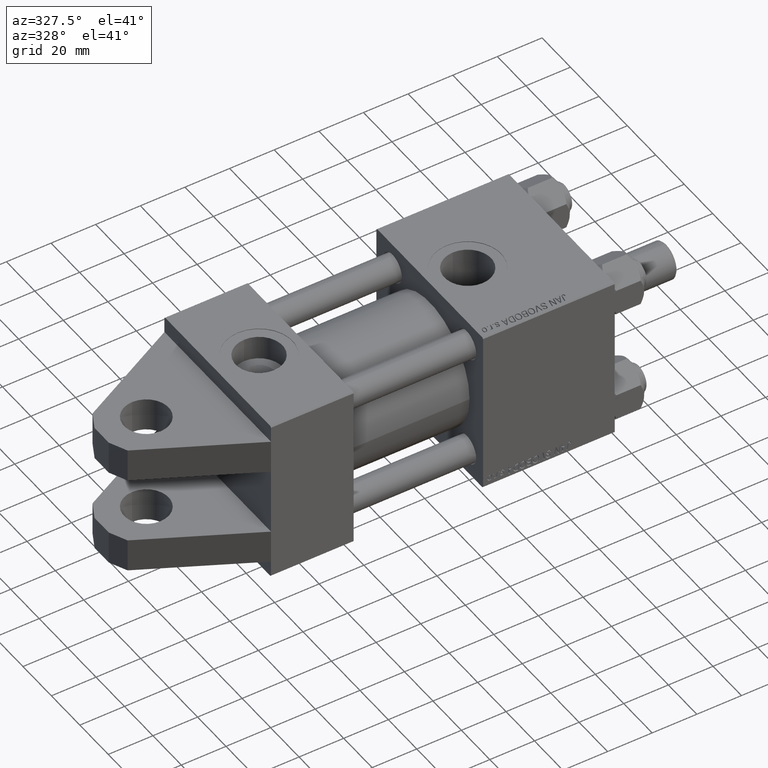
[diagram: clean part render]
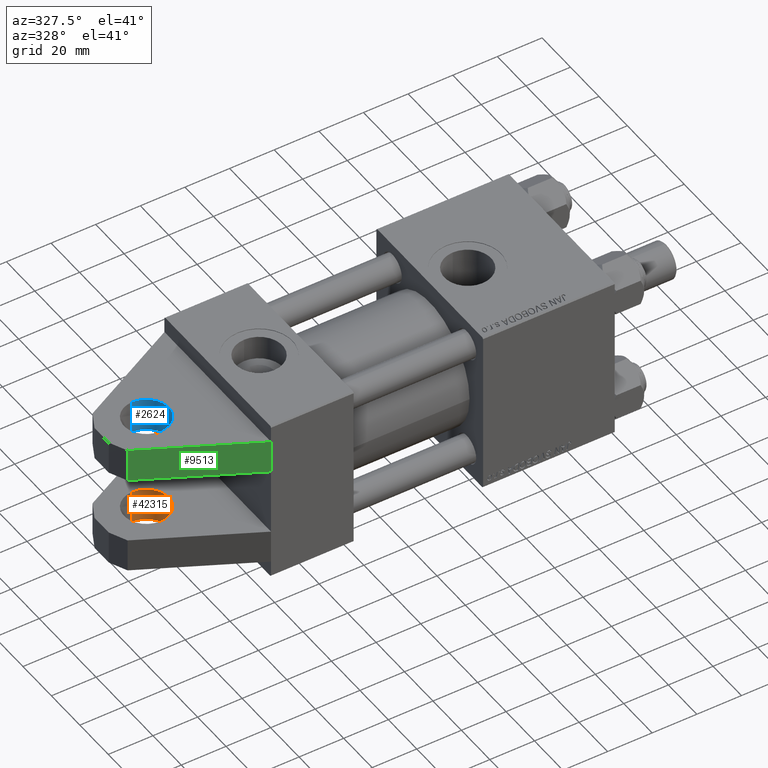
[diagram: same view with three faces highlighted in distinct colors, each labeled with its STEP entity id]
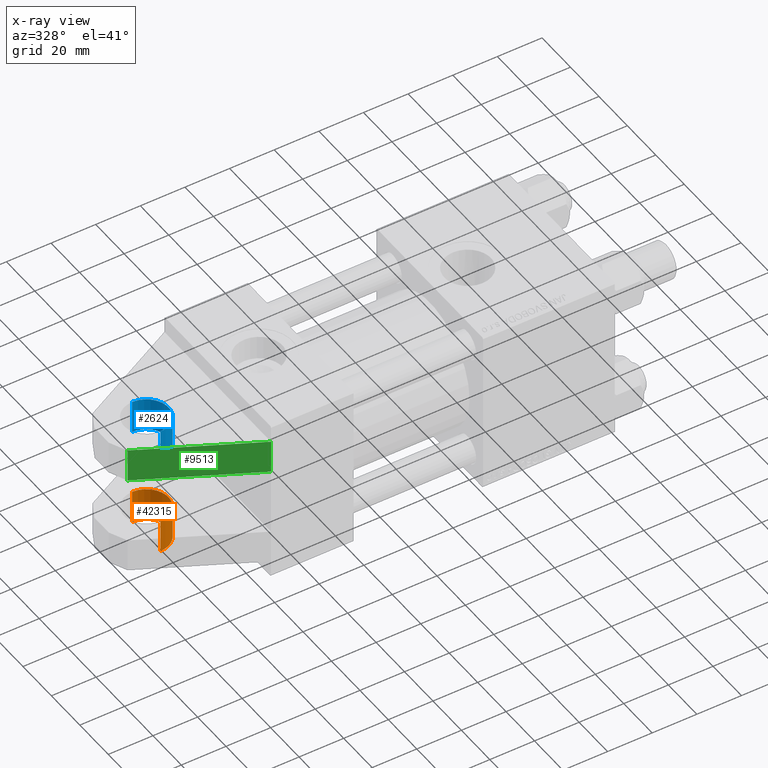
[diagram: x-ray of the same camera — body ghosted, the three highlighted faces saturated]
A machine part, auxiliary view with three faces highlighted in distinct colors.
The next image is the same camera in x-ray (body ghosted, the three faces saturated) — at least one of them is partly hidden behind the body in this view.
Their STEP definitions:

[orange] entity #42315 — the highlighted cylindrical surface (edge-blend (fillet) strip) has radius 10 mm, axis along (-0, -0, 1).
#1060 = VERTEX_POINT ( 'NONE', #42036 ) ;
#3557 = VECTOR ( 'NONE', #32211, 1000.000000000000000 ) ;
#3680 = DIRECTION ( 'NONE',  ( 0.000000000000000000, 0.000000000000000000, 1.000000000000000000 ) ) ;
#4427 = LINE ( 'NONE', #24759, #19759 ) ;
#4739 = EDGE_LOOP ( 'NONE', ( #50429, #13485, #47807, #20985 ) ) ;
#5723 = CYLINDRICAL_SURFACE ( 'NONE', #7133, 10.00000000000000000 ) ;
#7133 = AXIS2_PLACEMENT_3D ( 'NONE', #9174, #9689, #25269 ) ;
#9174 = CARTESIAN_POINT ( 'NONE',  ( -32.00000000000000000, 30.00000000000000000, -6.938893903907228378E-15 ) ) ;
#9423 = FACE_OUTER_BOUND ( 'NONE', #4739, .T. ) ;
#9689 = DIRECTION ( 'NONE',  ( -0.000000000000000000, -1.000000000000000000, -0.000000000000000000 ) ) ;
#9749 = EDGE_CURVE ( 'NONE', #35036, #1060, #45113, .T. ) ;
#12443 = CIRCLE ( 'NONE', #25137, 10.00000000000000000 ) ;
#12491 = DIRECTION ( 'NONE',  ( 0.000000000000000000, 1.000000000000000000, 0.000000000000000000 ) ) ;
#13485 = ORIENTED_EDGE ( 'NONE', *, *, #9749, .T. ) ;
#14578 = EDGE_CURVE ( 'NONE', #17393, #49573, #12443, .T. ) ;
#15566 = CARTESIAN_POINT ( 'NONE',  ( -32.00000000000000000, 30.00000000000000000, 9.999999999999992895 ) ) ;
#15956 = CARTESIAN_POINT ( 'NONE',  ( -32.00000000000000000, 15.00000000000000000, 9.999999999999992895 ) ) ;
#16125 = LINE ( 'NONE', #40379, #3557 ) ;
#17393 = VERTEX_POINT ( 'NONE', #15956 ) ;
#19759 = VECTOR ( 'NONE', #28194, 1000.000000000000000 ) ;
#20648 = CARTESIAN_POINT ( 'NONE',  ( -32.00000000000000000, 15.00000000000000000, -10.00000000000000711 ) ) ;
#20985 = ORIENTED_EDGE ( 'NONE', *, *, #14578, .F. ) ;
#22394 = AXIS2_PLACEMENT_3D ( 'NONE', #51415, #31381, #3680 ) ;
#24759 = CARTESIAN_POINT ( 'NONE',  ( -32.00000000000000000, 30.00000000000000000, -10.00000000000000711 ) ) ;
#25137 = AXIS2_PLACEMENT_3D ( 'NONE', #41737, #12491, #29364 ) ;
#25269 = DIRECTION ( 'NONE',  ( 0.000000000000000000, 0.000000000000000000, -1.000000000000000000 ) ) ;
#28194 = DIRECTION ( 'NONE',  ( -0.000000000000000000, -1.000000000000000000, -0.000000000000000000 ) ) ;
#29364 = DIRECTION ( 'NONE',  ( 0.000000000000000000, 0.000000000000000000, 1.000000000000000000 ) ) ;
#31381 = DIRECTION ( 'NONE',  ( 0.000000000000000000, 1.000000000000000000, 0.000000000000000000 ) ) ;
#32211 = DIRECTION ( 'NONE',  ( -0.000000000000000000, -1.000000000000000000, -0.000000000000000000 ) ) ;
#34823 = EDGE_CURVE ( 'NONE', #35036, #17393, #16125, .T. ) ;
#35036 = VERTEX_POINT ( 'NONE', #15566 ) ;
#40379 = CARTESIAN_POINT ( 'NONE',  ( -32.00000000000000000, 30.00000000000000000, 9.999999999999992895 ) ) ;
#41737 = CARTESIAN_POINT ( 'NONE',  ( -32.00000000000000000, 15.00000000000000000, -6.938893903907228378E-15 ) ) ;
#42036 = CARTESIAN_POINT ( 'NONE',  ( -32.00000000000000000, 30.00000000000000000, -10.00000000000000711 ) ) ;
#42315 = ADVANCED_FACE ( 'NONE', ( #9423 ), #5723, .F. ) ;
#43092 = EDGE_CURVE ( 'NONE', #1060, #49573, #4427, .T. ) ;
#45113 = CIRCLE ( 'NONE', #22394, 10.00000000000000000 ) ;
#47807 = ORIENTED_EDGE ( 'NONE', *, *, #43092, .T. ) ;
#49573 = VERTEX_POINT ( 'NONE', #20648 ) ;
#50429 = ORIENTED_EDGE ( 'NONE', *, *, #34823, .F. ) ;
#51415 = CARTESIAN_POINT ( 'NONE',  ( -32.00000000000000000, 30.00000000000000000, -6.938893903907228378E-15 ) ) ;

[blue] entity #2624 — the highlighted cylindrical surface (edge-blend (fillet) strip) has radius 10 mm, axis along (0, 0, -1).
#309 = CIRCLE ( 'NONE', #5370, 10.00000000000000000 ) ;
#2624 = ADVANCED_FACE ( 'NONE', ( #45362 ), #21110, .F. ) ;
#3614 = ORIENTED_EDGE ( 'NONE', *, *, #32510, .F. ) ;
#4055 = VERTEX_POINT ( 'NONE', #4211 ) ;
#4211 = CARTESIAN_POINT ( 'NONE',  ( -32.00000000000000000, -15.00000000000000000, 9.999999999999992895 ) ) ;
#4228 = DIRECTION ( 'NONE',  ( -0.000000000000000000, 1.000000000000000000, -0.000000000000000000 ) ) ;
#5370 = AXIS2_PLACEMENT_3D ( 'NONE', #18187, #34267, #50342 ) ;
#8000 = DIRECTION ( 'NONE',  ( -0.000000000000000000, 1.000000000000000000, -0.000000000000000000 ) ) ;
#8137 = VERTEX_POINT ( 'NONE', #17365 ) ;
#9089 = VERTEX_POINT ( 'NONE', #12351 ) ;
#12351 = CARTESIAN_POINT ( 'NONE',  ( -32.00000000000000000, -30.00000000000000000, -10.00000000000000711 ) ) ;
#15916 = CARTESIAN_POINT ( 'NONE',  ( -32.00000000000000000, -30.00000000000000000, 9.999999999999992895 ) ) ;
#16862 = CARTESIAN_POINT ( 'NONE',  ( -32.00000000000000000, -30.00000000000000000, 9.999999999999992895 ) ) ;
#16889 = CIRCLE ( 'NONE', #35404, 10.00000000000000000 ) ;
#17365 = CARTESIAN_POINT ( 'NONE',  ( -32.00000000000000000, -15.00000000000000000, -10.00000000000000711 ) ) ;
#18187 = CARTESIAN_POINT ( 'NONE',  ( -32.00000000000000000, -30.00000000000000000, -6.938893903907228378E-15 ) ) ;
#18376 = CARTESIAN_POINT ( 'NONE',  ( -32.00000000000000000, -30.00000000000000000, -10.00000000000000711 ) ) ;
#21110 = CYLINDRICAL_SURFACE ( 'NONE', #44028, 10.00000000000000000 ) ;
#22102 = DIRECTION ( 'NONE',  ( -0.000000000000000000, 1.000000000000000000, -0.000000000000000000 ) ) ;
#23583 = EDGE_CURVE ( 'NONE', #4055, #8137, #16889, .T. ) ;
#24226 = VECTOR ( 'NONE', #50531, 1000.000000000000000 ) ;
#28773 = VECTOR ( 'NONE', #8000, 1000.000000000000000 ) ;
#29503 = CARTESIAN_POINT ( 'NONE',  ( -32.00000000000000000, -15.00000000000000000, -6.938893903907228378E-15 ) ) ;
#29544 = DIRECTION ( 'NONE',  ( 0.000000000000000000, 0.000000000000000000, 1.000000000000000000 ) ) ;
#29760 = DIRECTION ( 'NONE',  ( 0.000000000000000000, 0.000000000000000000, 1.000000000000000000 ) ) ;
#32510 = EDGE_CURVE ( 'NONE', #46790, #9089, #309, .T. ) ;
#33177 = EDGE_CURVE ( 'NONE', #46790, #4055, #35186, .T. ) ;
#34267 = DIRECTION ( 'NONE',  ( -0.000000000000000000, 1.000000000000000000, -0.000000000000000000 ) ) ;
#34458 = LINE ( 'NONE', #18376, #24226 ) ;
#35186 = LINE ( 'NONE', #15916, #28773 ) ;
#35404 = AXIS2_PLACEMENT_3D ( 'NONE', #29503, #22102, #29760 ) ;
#36742 = EDGE_LOOP ( 'NONE', ( #45557, #3614, #36982, #36748 ) ) ;
#36748 = ORIENTED_EDGE ( 'NONE', *, *, #23583, .T. ) ;
#36982 = ORIENTED_EDGE ( 'NONE', *, *, #33177, .T. ) ;
#37189 = CARTESIAN_POINT ( 'NONE',  ( -32.00000000000000000, -30.00000000000000000, -6.938893903907228378E-15 ) ) ;
#44028 = AXIS2_PLACEMENT_3D ( 'NONE', #37189, #4228, #29544 ) ;
#45362 = FACE_OUTER_BOUND ( 'NONE', #36742, .T. ) ;
#45557 = ORIENTED_EDGE ( 'NONE', *, *, #50618, .F. ) ;
#46790 = VERTEX_POINT ( 'NONE', #16862 ) ;
#50342 = DIRECTION ( 'NONE',  ( 0.000000000000000000, 0.000000000000000000, 1.000000000000000000 ) ) ;
#50531 = DIRECTION ( 'NONE',  ( -0.000000000000000000, 1.000000000000000000, -0.000000000000000000 ) ) ;
#50618 = EDGE_CURVE ( 'NONE', #9089, #8137, #34458, .T. ) ;

[green] entity #9513 — the highlighted planar face has unit normal (-0.4566, -0.8897, -0).
#2913 = LINE ( 'NONE', #25893, #6182 ) ;
#5824 = DIRECTION ( 'NONE',  ( -0.000000000000000000, 1.000000000000000000, -0.000000000000000000 ) ) ;
#6045 = DIRECTION ( 'NONE',  ( -0.8896669897448514774, 0.000000000000000000, 0.4566099510066927158 ) ) ;
#6182 = VECTOR ( 'NONE', #5824, 1000.000000000000000 ) ;
#7071 = EDGE_CURVE ( 'NONE', #19911, #46473, #41918, .T. ) ;
#9399 = DIRECTION ( 'NONE',  ( -0.8896669897448514774, 0.000000000000000000, 0.4566099510066927158 ) ) ;
#9513 = ADVANCED_FACE ( 'NONE', ( #49185 ), #25736, .T. ) ;
#12261 = VERTEX_POINT ( 'NONE', #46226 ) ;
#15585 = VECTOR ( 'NONE', #6045, 1000.000000000000000 ) ;
#15934 = ORIENTED_EDGE ( 'NONE', *, *, #27343, .F. ) ;
#17033 = CARTESIAN_POINT ( 'NONE',  ( -48.43732805352595960, -30.00000000000000000, -12.64017464471899110 ) ) ;
#17116 = DIRECTION ( 'NONE',  ( -0.000000000000000000, 1.000000000000000000, -0.000000000000000000 ) ) ;
#17816 = EDGE_CURVE ( 'NONE', #44335, #12261, #40528, .T. ) ;
#18215 = AXIS2_PLACEMENT_3D ( 'NONE', #17033, #33886, #49966 ) ;
#19911 = VERTEX_POINT ( 'NONE', #22132 ) ;
#22132 = CARTESIAN_POINT ( 'NONE',  ( 0.000000000000000000, -15.00000000000000000, -37.50000000000000711 ) ) ;
#23750 = ORIENTED_EDGE ( 'NONE', *, *, #36584, .T. ) ;
#24242 = EDGE_LOOP ( 'NONE', ( #37010, #15934, #28249, #23750 ) ) ;
#25736 = PLANE ( 'NONE',  #18215 ) ;
#25893 = CARTESIAN_POINT ( 'NONE',  ( -48.43732805352595960, -30.00000000000000000, -12.64017464471899110 ) ) ;
#27343 = EDGE_CURVE ( 'NONE', #44335, #19911, #48741, .T. ) ;
#28249 = ORIENTED_EDGE ( 'NONE', *, *, #17816, .T. ) ;
#29197 = CARTESIAN_POINT ( 'NONE',  ( -48.43732805352595960, -30.00000000000000000, -12.64017464471899110 ) ) ;
#30064 = CARTESIAN_POINT ( 'NONE',  ( -48.43732805352595960, -15.00000000000000000, -12.64017464471899110 ) ) ;
#33886 = DIRECTION ( 'NONE',  ( -0.4566099510066927158, 0.000000000000000000, -0.8896669897448514774 ) ) ;
#35219 = CARTESIAN_POINT ( 'NONE',  ( -48.43732805352595960, -15.00000000000000000, -12.64017464471899110 ) ) ;
#36584 = EDGE_CURVE ( 'NONE', #12261, #46473, #2913, .T. ) ;
#37010 = ORIENTED_EDGE ( 'NONE', *, *, #7071, .F. ) ;
#39725 = VECTOR ( 'NONE', #17116, 1000.000000000000000 ) ;
#40528 = LINE ( 'NONE', #29197, #46281 ) ;
#41918 = LINE ( 'NONE', #30064, #15585 ) ;
#44335 = VERTEX_POINT ( 'NONE', #46690 ) ;
#46226 = CARTESIAN_POINT ( 'NONE',  ( -48.43732805352595960, -30.00000000000000000, -12.64017464471899110 ) ) ;
#46281 = VECTOR ( 'NONE', #9399, 1000.000000000000000 ) ;
#46473 = VERTEX_POINT ( 'NONE', #35219 ) ;
#46690 = CARTESIAN_POINT ( 'NONE',  ( 0.000000000000000000, -30.00000000000000000, -37.50000000000000711 ) ) ;
#48741 = LINE ( 'NONE', #49266, #39725 ) ;
#49185 = FACE_OUTER_BOUND ( 'NONE', #24242, .T. ) ;
#49266 = CARTESIAN_POINT ( 'NONE',  ( 0.000000000000000000, -30.00000000000000000, -37.50000000000000711 ) ) ;
#49966 = DIRECTION ( 'NONE',  ( -0.8896669897448514774, 0.000000000000000000, 0.4566099510066927158 ) ) ;